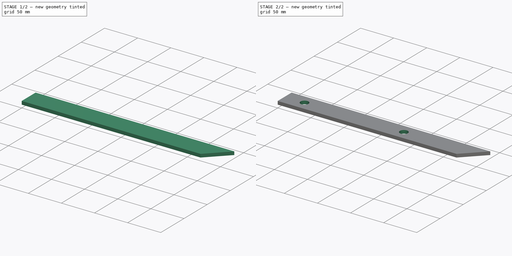
[diagram: build sequence overview — one tinted view per stage of 2, left to right]
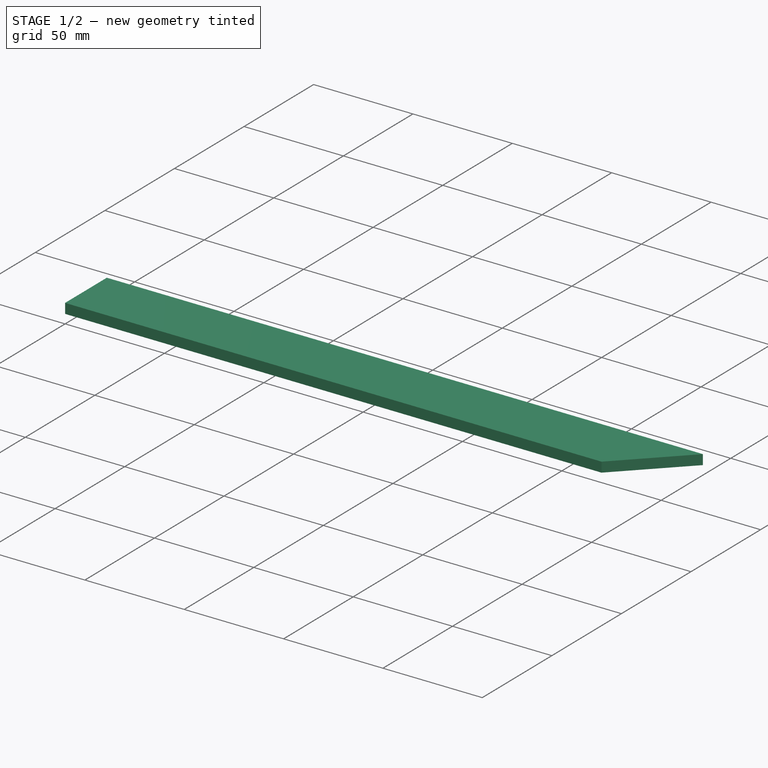
[diagram: stage 1 of 2 — iso view after this stage's code; geometry added in this stage tinted green]
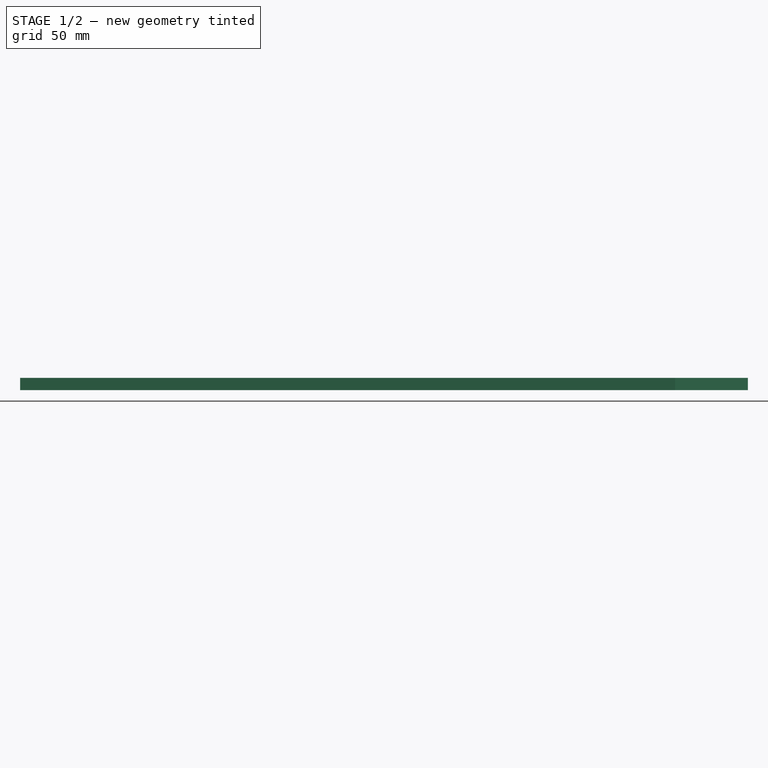
[diagram: stage 1 of 2 — front view after this stage's code; geometry added in this stage tinted green]
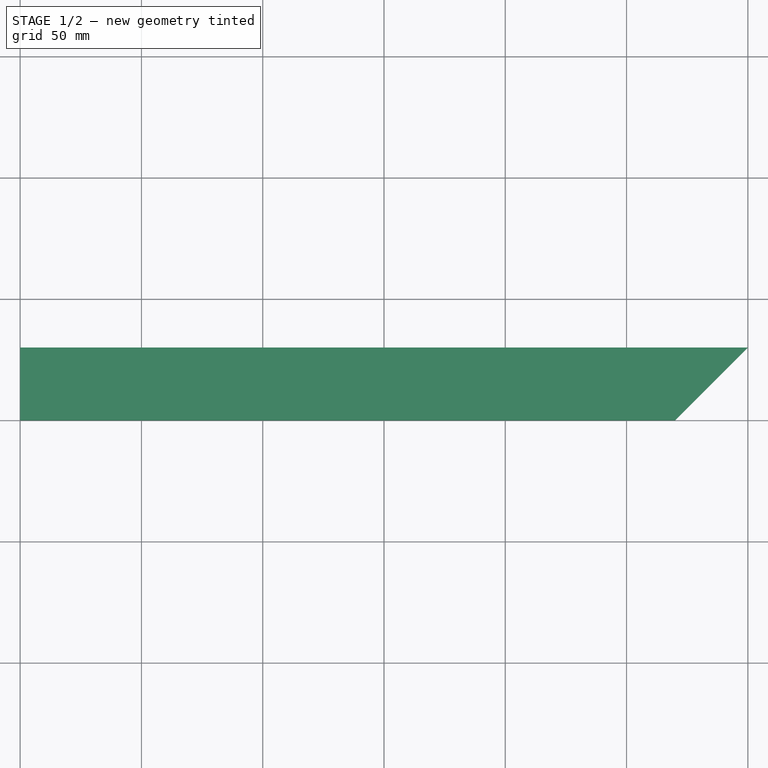
[diagram: stage 1 of 2 — top view after this stage's code; geometry added in this stage tinted green]
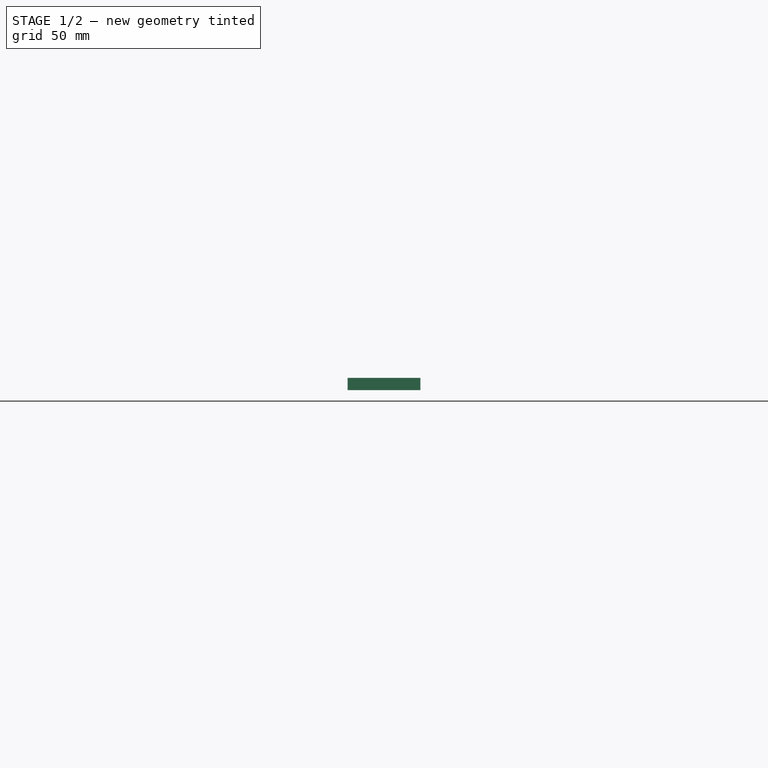
[diagram: stage 1 of 2 — right view after this stage's code; geometry added in this stage tinted green]
FCSTD DOCUMENT  (FreeCAD 0.21R33771 (Git))
Label: Tail_Vane_Bracket
License: All rights reserved
LicenseURL: http://en.wikipedia.org/wiki/All_rights_reserved
objects: App::Link×4, Sketcher::SketchObject×2, App::Part×2, PartDesign::Pad×1, PartDesign::Pocket×1, Spreadsheet::Sheet×1, PartDesign::Body×1
note: 7 computed .brp shape members not serialized (recipe doc carries the construction recipe); baked Part::Feature solids carry a one-line shape summary decoded from their .brp
EXTERNAL_REF file=../../Master_of_Puppets.FCStd obj=Alternator
EXTERNAL_REF file=../../Master_of_Puppets.FCStd obj=Fastener
EXTERNAL_REF file=../../Master_of_Puppets.FCStd obj=Spreadsheet
EXTERNAL_REF file=../../Master_of_Puppets.FCStd obj=Tail
EXTERNAL_REF file=../../Fasteners/Fastener_Bolt_Tail_Vane.FCStd obj=Body
EXTERNAL_REF file=../../Fasteners/Fastener_HexNut.FCStd obj=Body
EXTERNAL_REF file=../../Fasteners/Fastener_Washer_Wide.FCStd obj=Tube

FEATURE [Spreadsheet::Sheet] Spreadsheet
  cells = A1='Inputs; A2='Width; B2(Width)==Master_of_Puppets#Spreadsheet.BracketWidth; A3='Length; B3(Length)==Master_of_Puppets#Spreadsheet.BracketLength; A4='BracketThickness; B4(BracketThickness)==Master_of_Puppets#Spreadsheet.BracketThickness; A5='HolesRadius; B5(HolesRadius)==Master_of_Puppets#Alternator.HolesRadius; A6='DistanceToFirstHole; B6(DistanceToFirstHole)==Master_of_Puppets#Tail.DistanceToFirstHole; A7='DistanceBetweenHoles; B7(DistanceBetweenHoles)==Master_of_Puppets#Tail.DistanceBetweenHoles; A8='VaneBracketAngle; B8(VaneBracketAngle)==Master_of_Puppets#Tail.VaneBracketAngle; A9='VaneThickness; B9(VaneThickness)==Master_of_Puppets#Spreadsheet.VaneThickness; A10='FlatMetalThickness; B10(FlatMetalThickness)==Master_of_Puppets#Spreadsheet.FlatMetalThickness; A11='HexNutThickness; B11(HexNutThickness)==Master_of_Puppets#Fastener.HexNutThickness; A12='WasherThickness; B12(WasherThickness)==Master_of_Puppets#Fastener.WasherThickness; A13='TailVaneBracketBoltLength; B13(TailVaneBracketBoltLength)==Master_of_Puppets#Fastener.TailVaneBracketBoltLength; A14='DistanceThreadsExtendFromNuts; B14(DistanceThreadsExtendFromNuts)==Master_of_Puppets#Fastener.DistanceThreadsExtendFromNuts; A15='Placement; A16='Y_Holes; B16(Y_Holes)==Width / 2; C16='Duplicated in TailVane; A17='BoltZ; B17(BoltZ)==BracketThickness; A18='DistanceToSecondHole; B18(DistanceToSecondHole)==DistanceToFirstHole + DistanceBetweenHoles; A19='WasherZ; B19(WasherZ)==-WasherThickness - VaneThickness; A20='HexNutZ; B20(HexNutZ)==-HexNutThickness + WasherZ
FEATURE [PartDesign::Body] PocketBody  label="Tail_Vane_Bracket_Body"
  Group = -> [Sketch,Pad,Sketch001,Pocket]
  Openafpm_Flat = true
  Origin = -> Origin001
  Tip = -> Pocket
FEATURE [App::Link] Link  label="Bolt"
  LinkPlacement = pos=(0,0,5) rot=(0,0,1;0rad)
  LinkedObject = -> <external ../../Fasteners/Fastener_Bolt_Tail_Vane.FCStd>#Body
  Placement = pos=(0,0,5) rot=(0,0,1;0rad)
  expr: .Placement.Base.z = Spreadsheet.BoltZ
FEATURE [App::Link] Link002  label="HexNut"
  LinkPlacement = pos=(0,0,-18.69) rot=(0,0,1;0rad)
  LinkedObject = -> <external ../../Fasteners/Fastener_HexNut.FCStd>#Body
  Placement = pos=(0,0,-18.69) rot=(0,0,1;0rad)
  expr: .Placement.Base.z = Spreadsheet.HexNutZ
FEATURE [App::Link] Link003  label="Assembly_BoltNut_Second"
  LinkPlacement = pos=(180,15,0) rot=(0,0,1;0rad)
  LinkedObject = -> Part001
  Placement = pos=(180,15,0) rot=(0,0,1;0rad)
  expr: .Placement.Base.x = Spreadsheet.DistanceToSecondHole
  expr: .Placement.Base.y = Spreadsheet.Y_Holes
FEATURE [App::Link] Link004  label="Washer"
  LinkPlacement = pos=(0,0,-8.5) rot=(0,0,1;0rad)
  LinkedObject = -> <external ../../Fasteners/Fastener_Washer_Wide.FCStd>#Tube
  Placement = pos=(0,0,-8.5) rot=(0,0,1;0rad)
  expr: .Placement.Base.z = Spreadsheet.WasherZ
FEATURE [App::Part] Part001  label="Assembly_BoltNut_First"
  Group = -> [Link,Link002,Link004]
  Origin = -> Origin002
  Placement = pos=(30,15,0) rot=(0,0,1;0rad)
  expr: .Placement.Base.x = Spreadsheet.DistanceToFirstHole
  expr: .Placement.Base.y = Spreadsheet.Y_Holes
FEATURE [App::Part] Part  label="Tail_Vane_Bracket"
  Group = -> [PocketBody,Part001,Link003]
  Origin = -> Origin
  Placement = pos=(0,0,0) rot=(0.57735,-0.57735,-0.57735;4.18879rad)

RESOLVED EXTERNAL PARTS (link-assembly join: the EXTERNAL_REF files above that resolve inside this repo's crawl, each included once):
---- part ../../Fasteners/Fastener_Bolt_Tail_Vane.FCStd = doc fcstd_b2f30b348f54 ----
FCSTD DOCUMENT  (FreeCAD 0.21R33771 (Git))
Label: Fastener_Bolt_Tail_Vane
License: All rights reserved
LicenseURL: http://en.wikipedia.org/wiki/All_rights_reserved
objects: Sketcher::SketchObject×3, PartDesign::Pad×2, Spreadsheet::Sheet×1, PartDesign::Plane×1, PartDesign::Groove×1, PartDesign::Body×1
note: 11 computed .brp shape members not serialized (recipe doc carries the construction recipe); baked Part::Feature solids carry a one-line shape summary decoded from their .brp
EXTERNAL_REF file=../Master_of_Puppets.FCStd obj=Alternator
EXTERNAL_REF file=../Master_of_Puppets.FCStd obj=Fastener
EXTERNAL_REF file=../Master_of_Puppets.FCStd obj=Hub

FEATURE [Sketcher::SketchObject] Sketch  label="HeadSketch"
  FullyConstrained = true
  MapMode = 5
  Support = -> [XY_Plane]
  expr: Constraints[19] = Spreadsheet.MajorRadius
  sketch-geometry (7):
    g0: LineSegment StartX=1.9e-15 StartY=10.39 StartZ=0 EndX=-8.998 EndY=5.195 EndZ=0
    g1: LineSegment StartX=-8.998 StartY=5.195 StartZ=0 EndX=-8.998 EndY=-5.195 EndZ=0
    g2: LineSegment StartX=-8.998 StartY=-5.195 StartZ=0 EndX=1.8e-15 EndY=-10.39 EndZ=0
    g3: LineSegment StartX=1.8e-15 StartY=-10.39 StartZ=0 EndX=8.998 EndY=-5.195 EndZ=0
    g4: LineSegment StartX=8.998 StartY=-5.195 StartZ=0 EndX=8.998 EndY=5.195 EndZ=0
    g5: LineSegment StartX=8.998 StartY=5.195 StartZ=0 EndX=0 EndY=10.39 EndZ=0
    g6: Circle CenterX=0 CenterY=0 CenterZ=0 NormalX=0 NormalY=0 NormalZ=1 AngleXU=0 Radius=10.39
  constraints (16):
    c: Coincident(g0,g1)
    c: Coincident(g1,g2)
    c: Coincident(g2,g3)
    c: Coincident(g3,g4)
    c: Coincident(g4,g5)
    c: Equal(g0, g1-g5) x5
    c: PointOnObject(g0,g6)
    c: PointOnObject(g1,g6)
    c: PointOnObject(g2,g6)
    c: PointOnObject(g3,g6)
    c: PointOnObject(g4,g6)
    c: PointOnObject(g5,g6)
    c: Coincident(g6,g-1)
    c: PointOnObject(g5,g-2)
    c: Symmetric(g0,g2,g-1)
    c: DistanceY(g-1,g0) = 10.39
FEATURE [PartDesign::Pad] Pad  label="HeadPad"
  Direction = (0,0,1)
  Length = 10.19
  Length2 = 100
  Profile = -> Sketch
  Type = 0
  expr: Length = Spreadsheet.HeadHeight
FEATURE [Sketcher::SketchObject] Sketch001
  FullyConstrained = true
  MapMode = 5
  Placement = pos=(0,0,0) rot=(0.57735,0.57735,0.57735;2.0944rad)
  Support = -> [YZ_Plane]
  expr: Constraints[0] = Spreadsheet.TriangleDistance
  expr: Constraints[15] = Spreadsheet.Theta
  expr: Constraints[1] = Spreadsheet.TriangleWidth
  expr: Constraints[7] = Spreadsheet.Theta
  expr: Constraints[8] = Spreadsheet.HeadHeight
  sketch-geometry (6):
    g0: LineSegment StartX=-8.998 StartY=10.19 StartZ=0 EndX=-19.388 EndY=10.19 EndZ=0
    g1: LineSegment StartX=-19.388 StartY=4.19133 StartZ=0 EndX=-19.388 EndY=10.19 EndZ=0
    g2: LineSegment StartX=-8.998 StartY=10.19 StartZ=0 EndX=-19.388 EndY=4.19133 EndZ=0
    g3: LineSegment StartX=-8.998 StartY=0 StartZ=0 EndX=-19.388 EndY=0 EndZ=0
    g4: LineSegment StartX=-19.388 StartY=0 StartZ=0 EndX=-19.388 EndY=5.99867 EndZ=0
    g5: LineSegment StartX=-8.998 StartY=0 StartZ=0 EndX=-19.388 EndY=5.99867 EndZ=0
  constraints (18):
    c: DistanceX(g0,g-1) = 19.388
    c: DistanceX(g0,g0) = 10.39
    c: Coincident(g0,g1)
    c: Horizontal(g0)
    c: Vertical(g1)
    c: Coincident(g2,g0)
    c: Coincident(g2,g1)
    c: Angle(g0,g2) = 0.523599
    c: DistanceY(g-1,g0) = 10.19
    c: PointOnObject(g3,g-1)
    c: Horizontal(g3)
    c: Coincident(g4,g3)
    c: Vertical(g4)
    c: Coincident(g5,g3)
    c: PointOnObject(g5,g1)
    c: Angle(g5,g3) = 0.523599
    c: Equal(g3,g0)
    c: Coincident(g5,g4)
FEATURE [Spreadsheet::Sheet] Spreadsheet
  cells = A1='Variant; B1='Radius; C1='NominalLength; D1='WidthAcrossCorners; A2='HolesRadius; B2(Radius)==.B3; C2(NominalLength)==.C3; D2(WidthAcrossCorners)==.D3; A3='HolesRadius; B3==Master_of_Puppets#Alternator.HolesRadius; C3==Master_of_Puppets#Fastener.TailVaneBracketBoltLength; D3==Master_of_Puppets#Fastener.HolesWidthAcrossCorners; A4='HubHoles; B4==Master_of_Puppets#Hub.HubHolesRadius; C4==Master_of_Puppets#Fastener.HubHolesBoltLength; D4==Master_of_Puppets#Fastener.HubHolesWidthAcrossCorners; A5='StatorMold; B5==Master_of_Puppets#Alternator.StatorMoldBoltDiameter / 2; C5==Master_of_Puppets#Alternator.StatorMoldBoltLength; D5==Master_of_Puppets#Alternator.StatorMoldBoltWidthAcrossCorners; A6='Locating; B6==Master_of_Puppets#Alternator.LocatingBoltDiameter / 2; C6==Master_of_Puppets#Alternator.LocatingBoltLength; D6==Master_of_Puppets#Alternator.StatorMoldBoltWidthAcrossCorners; A8='Inputs; A9='HexNutThickness; B9(HexNutThickness)==Master_of_Puppets#Fastener.HexNutThickness; A10='Parameters; A11='HeadHeight; B11(HeadHeight)==HexNutThickness; A12='MinorDiameter; B12(MinorDiameter)==Radius * 2; A13='Calculations; B13='See Also; C13='https://calcresource.com/geom-hexagon.html; A14='CentralAngle; B14(CentralAngle)==360 / 6; A15='Theta; B15(Theta)==CentralAngle / 2; A16='Inradius; B16(Inradius)==cos(Theta) * MajorRadius; A17='TriangleDistance; B17(TriangleDistance)==MajorRadius + Inradius; A18='TriangleWidth; B18(TriangleWidth)==MajorRadius; A19='MajorRadius; B19(MajorRadius)==WidthAcrossCorners / 2; A20='MinorRadius; B20(MinorRadius)==MinorDiameter / 2
  expr: .cells.Bind.B2.D2 = tuple(.cells; <<B>> + str(hiddenref(Body.Variant) + 3); <<D>> + str(hiddenref(Body.Variant) + 3))
FEATURE [PartDesign::Plane] DatumPlane
  Length = 60
  MapMode = 2
  ResizeMode = 0
  Width = 60
FEATURE [Sketcher::SketchObject] Sketch002  label="ShaftSketch"
  FullyConstrained = true
  MapMode = 5
  Placement = pos=(0,0,0) rot=(0,1,0;3.14159rad)
  Support = -> [DatumPlane]
  expr: Constraints[1] = Spreadsheet.MinorRadius
  sketch-geometry (1):
    g0: Circle CenterX=0 CenterY=0 CenterZ=0 NormalX=0 NormalY=0 NormalZ=1 AngleXU=0 Radius=6
  constraints (2):
    c: Coincident(g0,g-1)
    c: Radius(g0) = 6
FEATURE [PartDesign::Pad] Pad001  label="ShaftPad"
  BaseFeature = -> Pad
  Direction = (0,0,-1)
  Length = 28.5
  Length2 = 100
  Profile = -> Sketch002
  Type = 0
  expr: Length = Spreadsheet.NominalLength
FEATURE [PartDesign::Groove] Groove
  Angle = 360
  Axis = (-3e-16,3e-16,1)
  Base = (0,0,0)
  BaseFeature = -> Pad001
  Profile = -> Sketch001
  ReferenceAxis = -> Z_Axis
  Reversed = true
FEATURE [PartDesign::Body] Body  label="Fastener_Bolt_Tail_Vane"
  Group = -> [Sketch,Pad,Sketch001,DatumPlane,Sketch002,Pad001,Groove]
  Origin = -> Origin
  Tip = -> Groove
  Variant = 0
  expr: .Variant.Enum = Spreadsheet.cells[<<A3:|>>]
---- part ../../Fasteners/Fastener_HexNut.FCStd = doc fcstd_2be729c7bb98 ----
FCSTD DOCUMENT  (FreeCAD 0.21R33771 (Git))
Label: Fastener_HexNut
License: All rights reserved
LicenseURL: http://en.wikipedia.org/wiki/All_rights_reserved
objects: Sketcher::SketchObject×2, PartDesign::Chamfer×2, PartDesign::Pad×1, Spreadsheet::Sheet×1, PartDesign::Groove×1, PartDesign::Body×1
note: 11 computed .brp shape members not serialized (recipe doc carries the construction recipe); baked Part::Feature solids carry a one-line shape summary decoded from their .brp
EXTERNAL_REF file=../Master_of_Puppets.FCStd obj=Alternator
EXTERNAL_REF file=../Master_of_Puppets.FCStd obj=Hub

FEATURE [Sketcher::SketchObject] Sketch
  FullyConstrained = true
  MapMode = 5
  Support = -> [XY_Plane]
  expr: Constraints[19] = Spreadsheet.ExternalRadius
  expr: Constraints[21] = Spreadsheet.MajorRadius
  sketch-geometry (8):
    g0: LineSegment StartX=2e-16 StartY=7 StartZ=0 EndX=-6.06218 EndY=3.5 EndZ=0
    g1: LineSegment StartX=-6.06218 StartY=3.5 StartZ=0 EndX=-6.06218 EndY=-3.5 EndZ=0
    g2: LineSegment StartX=-6.06218 StartY=-3.5 StartZ=0 EndX=0 EndY=-7 EndZ=0
    g3: LineSegment StartX=2e-16 StartY=-7 StartZ=0 EndX=6.06218 EndY=-3.5 EndZ=0
    g4: LineSegment StartX=6.06218 StartY=-3.5 StartZ=0 EndX=6.06218 EndY=3.5 EndZ=0
    g5: LineSegment StartX=6.06218 StartY=3.5 StartZ=0 EndX=0 EndY=7 EndZ=0
    g6: Circle CenterX=0 CenterY=0 CenterZ=0 NormalX=0 NormalY=0 NormalZ=1 AngleXU=0 Radius=7
    g7: Circle CenterX=0 CenterY=0 CenterZ=0 NormalX=0 NormalY=0 NormalZ=1 AngleXU=0 Radius=4
  constraints (18):
    c: Coincident(g0,g1)
    c: Coincident(g1,g2)
    c: Coincident(g2,g3)
    c: Coincident(g3,g4)
    c: Coincident(g4,g5)
    c: Equal(g0, g1-g5) x5
    c: PointOnObject(g0,g6)
    c: PointOnObject(g1,g6)
    c: PointOnObject(g2,g6)
    c: PointOnObject(g3,g6)
    c: PointOnObject(g4,g6)
    c: PointOnObject(g5,g6)
    c: Coincident(g6,g-1)
    c: PointOnObject(g5,g-2)
    c: Symmetric(g0,g2,g-1)
    c: DistanceY(g-1,g0) = 7
    c: Coincident(g7,g-1)
    c: Radius(g7) = 4
FEATURE [PartDesign::Pad] Pad
  Direction = (0,0,1)
  Length = 6.91
  Length2 = 100
  Profile = -> Sketch
  Type = 0
  expr: Length = Spreadsheet.Height
FEATURE [Sketcher::SketchObject] Sketch001
  FullyConstrained = true
  MapMode = 5
  Placement = pos=(0,0,0) rot=(0.57735,0.57735,0.57735;2.0944rad)
  Support = -> [YZ_Plane]
  expr: Constraints[0] = Spreadsheet.TriangleWidth
  expr: Constraints[14] = Spreadsheet.B15
  expr: Constraints[15] = Spreadsheet.TriangleDistance
  expr: Constraints[16] = Spreadsheet.TriangleWidth
  expr: Constraints[17] = Spreadsheet.TriangleDistance
  expr: Constraints[6] = Spreadsheet.B15
  expr: Constraints[7] = Spreadsheet.Height
  sketch-geometry (6):
    g0: LineSegment StartX=-6.06218 StartY=6.91 StartZ=0 EndX=-7 EndY=6.91 EndZ=0
    g1: LineSegment StartX=-7 StartY=5.28564 StartZ=0 EndX=-7 EndY=6.91 EndZ=0
    g2: LineSegment StartX=-6.06218 StartY=6.91 StartZ=0 EndX=-7 EndY=5.28564 EndZ=0
    g3: LineSegment StartX=-7 StartY=1.62436 StartZ=0 EndX=-7 EndY=0 EndZ=0
    g4: LineSegment StartX=-7 StartY=0 StartZ=0 EndX=-6.06218 EndY=0 EndZ=0
    g5: LineSegment StartX=-7 StartY=1.62436 StartZ=0 EndX=-6.06218 EndY=0 EndZ=0
  constraints (18):
    c: DistanceX(g0,g0) = 0.937822
    c: Coincident(g0,g1)
    c: Horizontal(g0)
    c: Vertical(g1)
    c: Coincident(g2,g0)
    c: Coincident(g2,g1)
    c: Angle(g0,g2) = 1.0472
    c: DistanceY(g-1,g0) = 6.91
    c: PointOnObject(g3,g-1)
    c: Vertical(g3)
    c: Coincident(g4,g3)
    c: PointOnObject(g4,g-1)
    c: Coincident(g5,g3)
    c: Coincident(g5,g4)
    c: Angle(g5,g4) = 1.0472
    c: DistanceX(g4,g-1) = 6.06218
    c: DistanceX(g4,g4) = 0.937822
    c: DistanceX(g0,g-1) = 6.06218
FEATURE [Spreadsheet::Sheet] Spreadsheet
  cells = A1='Variant; B1='Radius; A2='HolesRadius; B2(Radius)==.B3; A3='HolesRadius; B3==Master_of_Puppets#Alternator.HolesRadius; A4='HubHolesRadius; B4==Master_of_Puppets#Hub.HubHolesRadius; A5='StatorMold; B5==Master_of_Puppets#Alternator.StatorMoldBoltDiameter / 2; A6='CoilWinder; B6==Master_of_Puppets#Alternator.CoilWinderCenterRodRadius; A8='Inputs; A9='HexNutThickness; B9(HexNutThickness)==1.64 * Radius + 0.35; A10='Parameters; A11='MajorDiameter; B11(MajorDiameter)==Radius * 2; A12='ExternalDiameter; B12(ExternalDiameter)==Radius * 3.5; A13='Height; B13(Height)==HexNutThickness; A14='Calculations; B14='See Also; C14='https://calcresource.com/geom-hexagon.html; A15='CentralAngle; B15(CentralAngle)==360 / 6; A16='Theta; B16(Theta)==CentralAngle / 2; A17='ExternalRadius; B17(ExternalRadius)==ExternalDiameter / 2; A18='Inradius; B18(Inradius)==cos(Theta) * ExternalRadius; A19='TriangleWidth; B19(TriangleWidth)==ExternalRadius - Inradius; A20='TriangleDistance; B20(TriangleDistance)==ExternalRadius - TriangleWidth; A21='MajorRadius; B21(MajorRadius)==MajorDiameter / 2; A22='Chamfer; B22(Chamfer)==HexNutThickness * 0.14
  expr: .cells.Bind.B2.B2 = tuple(.cells; <<B>> + str(hiddenref(Body.Variant) + 3); <<B>> + str(hiddenref(Body.Variant) + 3))
FEATURE [PartDesign::Chamfer] Chamfer  label="TopChamfer"
  Angle = 45
  Base = -> Pad [Edge21]
  BaseFeature = -> Pad
  ChamferType = 0
  FlipDirection = false
  Size = 0.9674
  Size2 = 1
  SupportTransform = false
  UseAllEdges = false
  expr: Size = Spreadsheet.Chamfer
FEATURE [PartDesign::Chamfer] Chamfer001  label="BottomChamfer"
  Angle = 45
  Base = -> Chamfer [Edge3]
  BaseFeature = -> Chamfer
  ChamferType = 0
  FlipDirection = false
  Size = 0.9674
  Size2 = 1
  SupportTransform = false
  UseAllEdges = false
  expr: Size = Spreadsheet.Chamfer
FEATURE [PartDesign::Groove] Groove
  Angle = 360
  Axis = (-3e-16,3e-16,1)
  Base = (0,0,0)
  BaseFeature = -> Chamfer001
  Midplane = true
  Profile = -> Sketch001
  ReferenceAxis = -> Z_Axis
  Reversed = true
FEATURE [PartDesign::Body] Body  label="Fastener_HexNut"
  Group = -> [Sketch,Pad,Chamfer,Chamfer001,Sketch001,Groove]
  Origin = -> Origin
  Tip = -> Groove
  Variant = 0
  expr: .Variant.Enum = Spreadsheet.cells[<<A3:|>>]
---- part ../../Master_of_Puppets.FCStd = doc fcstd_6404554055c4 (61625 chars; too large to inline — full recipe in that document) ----
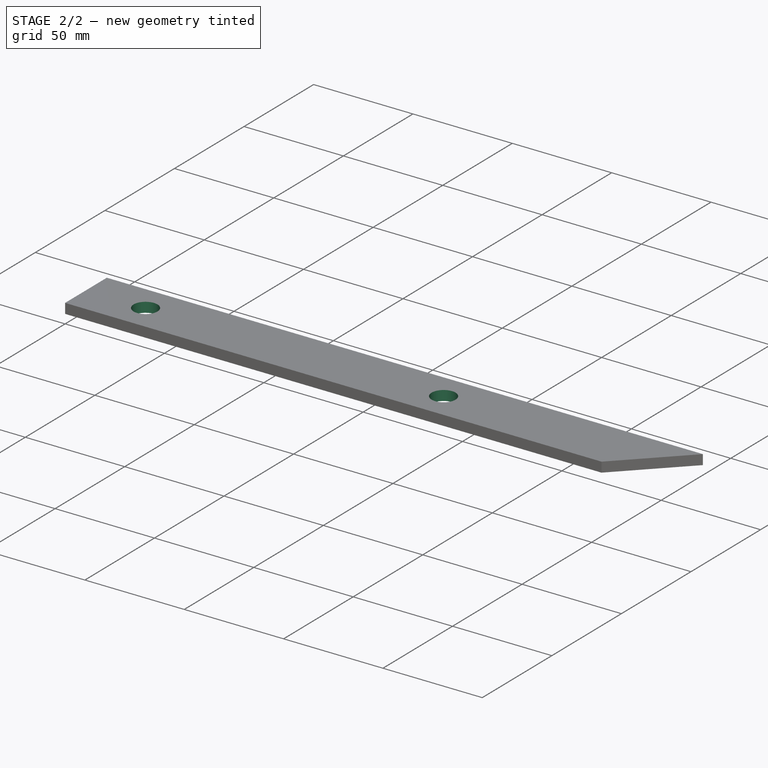
[diagram: stage 2 of 2 — iso view after this stage's code; geometry added in this stage tinted green]
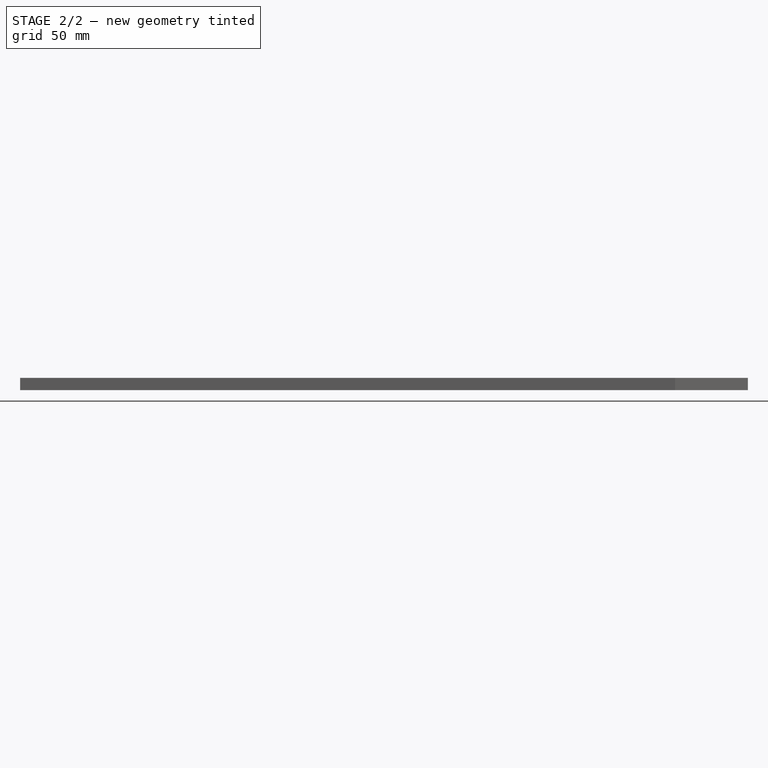
[diagram: stage 2 of 2 — front view after this stage's code; geometry added in this stage tinted green]
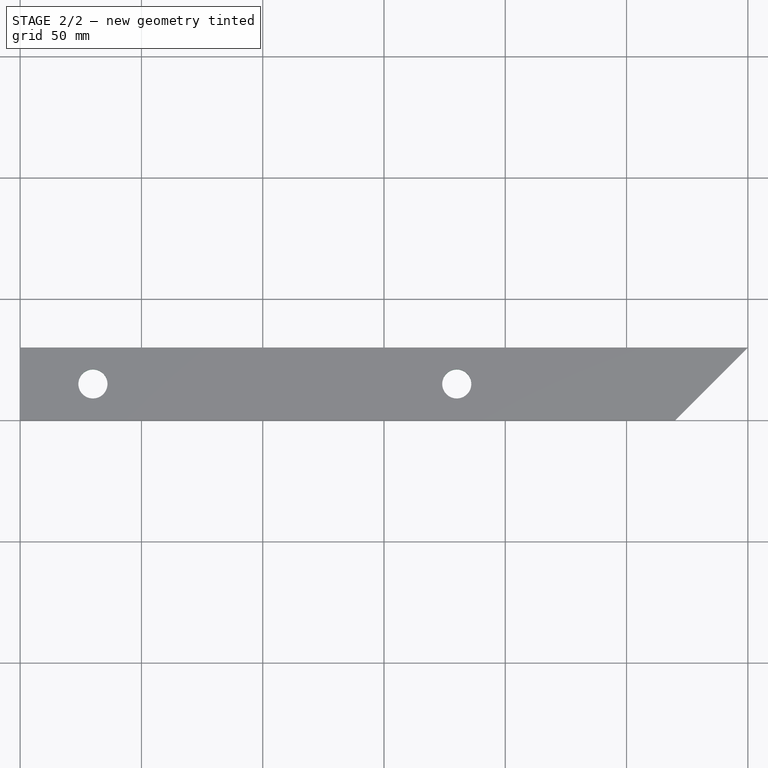
[diagram: stage 2 of 2 — top view after this stage's code; geometry added in this stage tinted green]
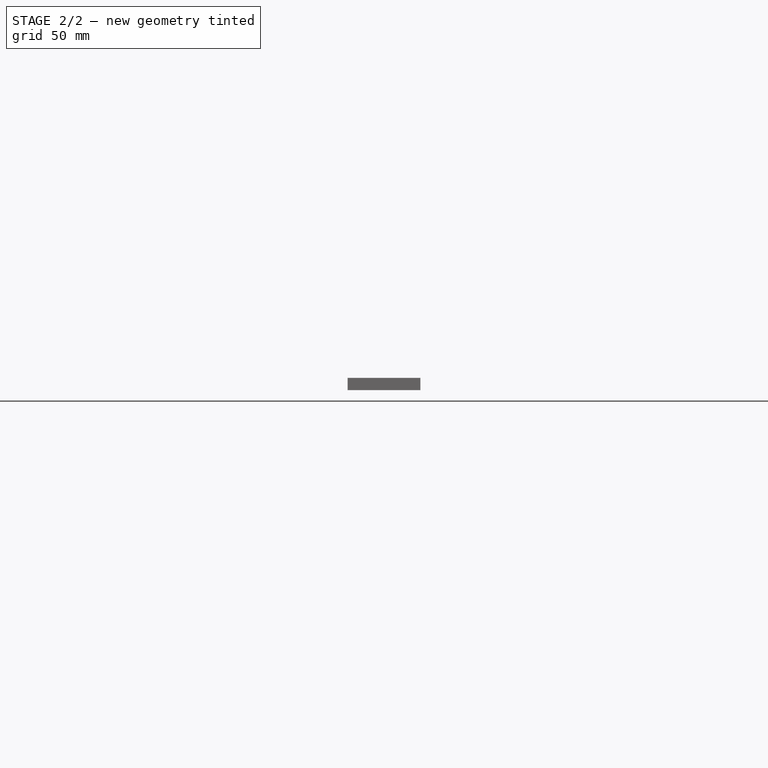
[diagram: stage 2 of 2 — right view after this stage's code; geometry added in this stage tinted green]
FEATURE [Sketcher::SketchObject] Sketch
  FullyConstrained = true
  MapMode = 5
  Support = -> [XY_Plane001]
  expr: Constraints[10] = Spreadsheet.Length
  expr: Constraints[7] = Spreadsheet.VaneBracketAngle
  expr: Constraints[8] = Spreadsheet.Width
  sketch-geometry (4):
    g0: LineSegment StartX=300 StartY=30 StartZ=0 EndX=0 EndY=30 EndZ=0
    g1: LineSegment StartX=0 StartY=30 StartZ=0 EndX=0 EndY=0 EndZ=0
    g2: LineSegment StartX=0 StartY=0 StartZ=0 EndX=270 EndY=0 EndZ=0
    g3: LineSegment StartX=270 StartY=0 StartZ=0 EndX=300 EndY=30 EndZ=0
  constraints (11):
    c: Coincident(g0,g1)
    c: Horizontal(g0)
    c: Vertical(g1)
    c: Coincident(g-1,g2)
    c: Horizontal(g2)
    c: Coincident(g2,g3)
    c: Coincident(g3,g0)
    c: Angle(g0,g3) = 0.785398
    c: DistanceY(g1,g1) = 30
    c: Coincident(g1,g-1)
    c: Distance(g0) = 300
FEATURE [PartDesign::Pad] Pad
  AllowMultiFace = false
  Direction = (0,0,1)
  Length = 5
  Length2 = 100
  Profile = -> Sketch
  Type = 0
  expr: Length = Spreadsheet.BracketThickness
FEATURE [Sketcher::SketchObject] Sketch001
  FullyConstrained = true
  MapMode = 5
  Placement = pos=(0,0,5) rot=(0,0,1;0rad)
  Support = -> [Pad]
  expr: Constraints[10] = Spreadsheet.DistanceBetweenHoles
  expr: Constraints[7] = Spreadsheet.Y_Holes
  expr: Constraints[8] = Spreadsheet.HolesRadius
  expr: Constraints[9] = Spreadsheet.DistanceToFirstHole
  sketch-geometry (4):
    g0: Circle CenterX=30 CenterY=15 CenterZ=0 NormalX=0 NormalY=0 NormalZ=1 AngleXU=0 Radius=6
    g1: Circle CenterX=180 CenterY=15 CenterZ=0 NormalX=0 NormalY=0 NormalZ=1 AngleXU=0 Radius=6
    g2: LineSegment StartX=0 StartY=15 StartZ=0 EndX=30 EndY=15 EndZ=0
    g3: LineSegment StartX=30 StartY=15 StartZ=0 EndX=180 EndY=15 EndZ=0
  constraints (11):
    c: Equal(g1,g0)
    c: PointOnObject(g2,g-2)
    c: Coincident(g2,g0)
    c: Horizontal(g2)
    c: Coincident(g2,g3)
    c: Coincident(g3,g1)
    c: Horizontal(g3)
    c: Distance(g-1,g2) = 15
    c: Radius(g0) = 6
    c: DistanceX(g2,g2) = 30
    c: DistanceX(g3,g3) = 150
FEATURE [PartDesign::Pocket] Pocket
  AllowMultiFace = false
  BaseFeature = -> Pad
  Direction = (0,0,-1)
  Length = 5
  Length2 = 100
  Profile = -> Sketch001
  Type = 1
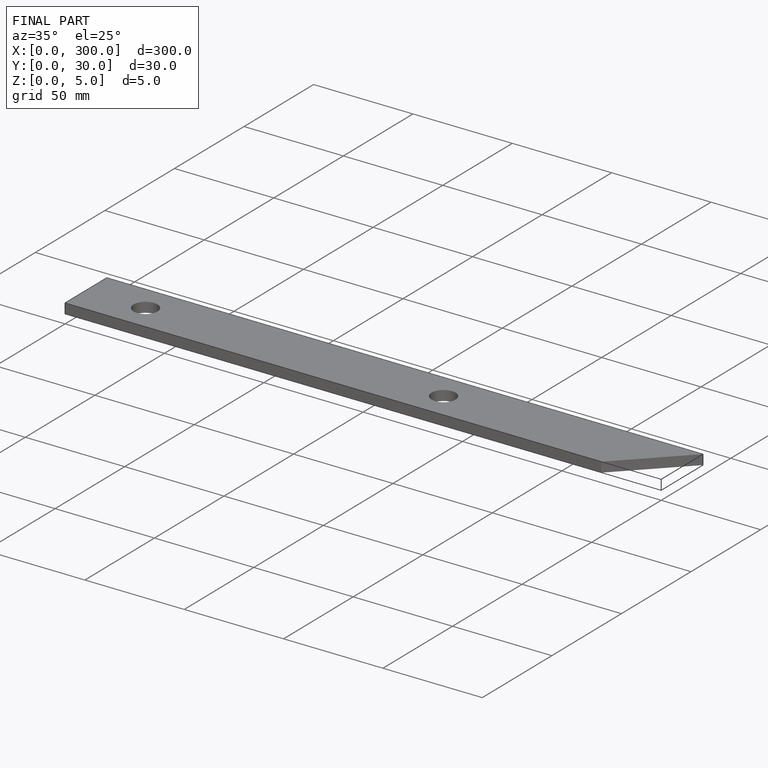
[diagram: finished part — iso view with bounding-box wireframe]
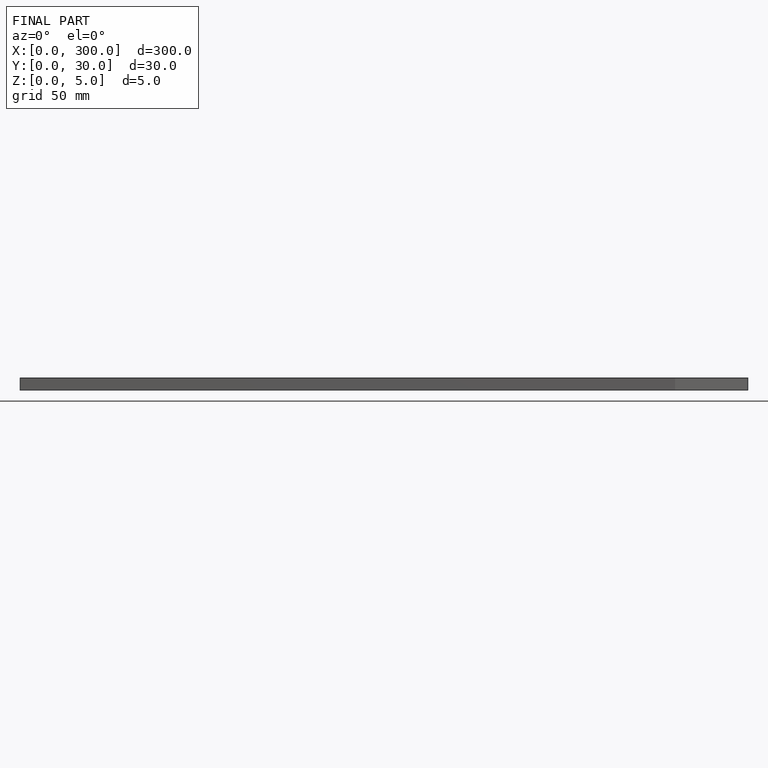
[diagram: finished part — front view with bounding-box wireframe]
